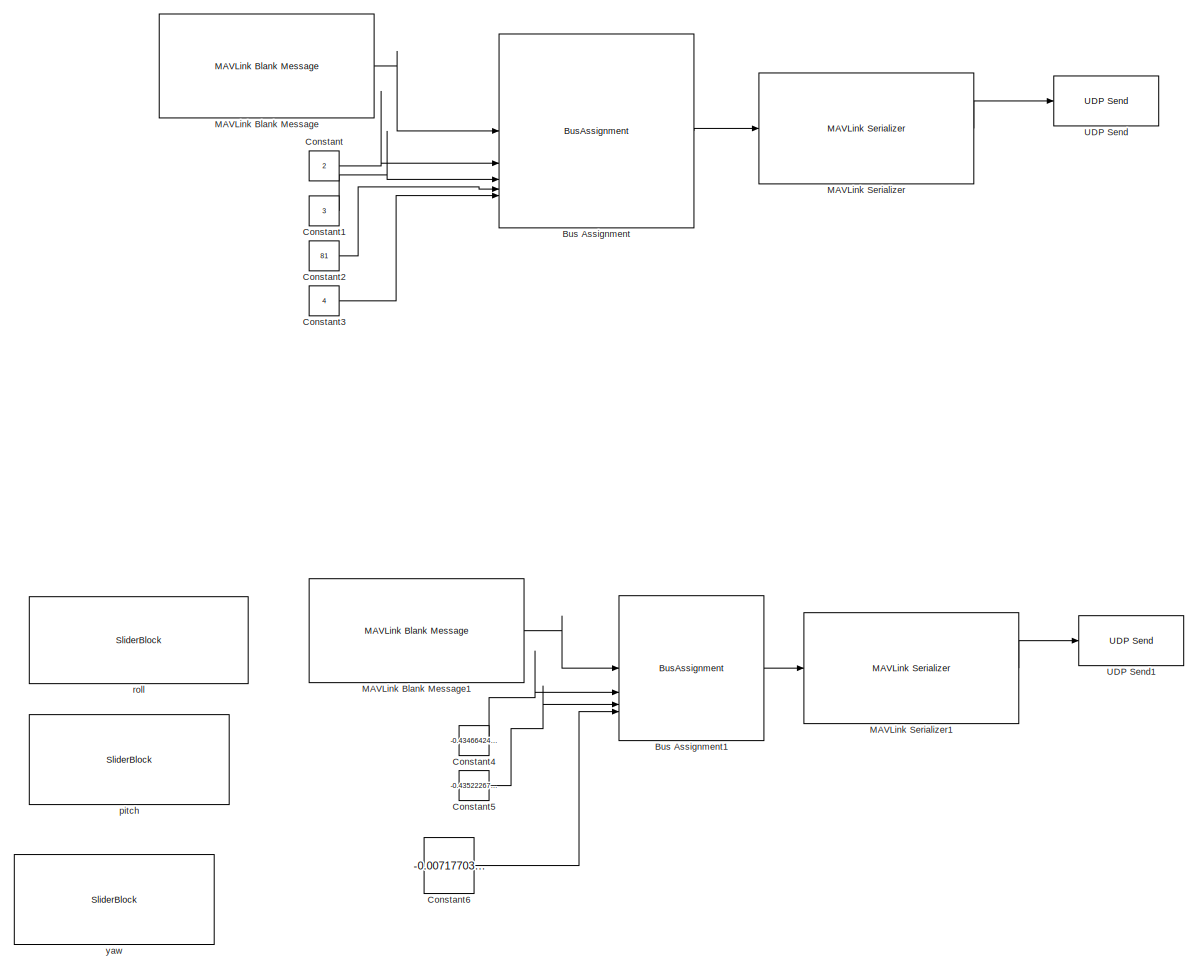
[diagram: root canvas - part 1/1, most of the canvas]
MODEL slx_5f4bbd5aaf19
KIND model
CONFIG AbsTol = auto
CONFIG EnableMultiTasking = off
CONFIG FixedStep = auto
CONFIG MaxStep = auto
CONFIG MinStep = auto
CONFIG RelTol = 1e-3
CONFIG SampleTimeConstraint = Unconstrained
CONFIG SolverName = VariableStepAuto
CONFIG StartTime = 0.0
CONFIG StopTime = inf
BLOCK [BusAssignment] Bus Assignment
  AssignedSignals = Payload.type,Payload.autopilot,Payload.base_mode,Payload.system_status
BLOCK [BusAssignment] Bus Assignment1
  AssignedSignals = Payload.roll,Payload.pitch,Payload.yaw
BLOCK [Constant] Constant
  OutDataTypeStr = uint8
  Value = 2
BLOCK [Constant] Constant1
  OutDataTypeStr = uint8
  Value = 3
BLOCK [Constant] Constant2
  OutDataTypeStr = uint8
  Value = 81
BLOCK [Constant] Constant3
  OutDataTypeStr = uint8
  Value = 4
BLOCK [Constant] Constant4
  OutDataTypeStr = single
  Value = -0.4346642468239564
BLOCK [Constant] Constant5
  OutDataTypeStr = single
  Value = -0.4352226720647773
BLOCK [Constant] Constant6
  OutDataTypeStr = single
  Value = -0.007177033492822948
BLOCK [Reference] MAVLink Blank Message  REF=uavmavlinklib/MAVLink Blank Message
  SourceBlock = uavmavlinklib/MAVLink Blank Message
  SourceType = MAVLink Blank Message
BLOCK [Reference] MAVLink Blank Message1  REF=uavmavlinklib/MAVLink Blank Message
  SourceBlock = uavmavlinklib/MAVLink Blank Message
  SourceType = MAVLink Blank Message
BLOCK [Reference] MAVLink Serializer  REF=uavmavlinklib/MAVLink Serializer
  SourceBlock = uavmavlinklib/MAVLink Serializer
  SourceType = MAVLink Serializer
BLOCK [Reference] MAVLink Serializer1  REF=uavmavlinklib/MAVLink Serializer
  SourceBlock = uavmavlinklib/MAVLink Serializer
  SourceType = MAVLink Serializer
BLOCK [Reference] UDP Send  REF=dspnetwork/UDP Send
  LibrarySourceBlock = dspsnks4/UDP Send
  SourceBlock = dspnetwork/UDP Send
  SourceType = UDP Send
BLOCK [Reference] UDP Send1  REF=dspnetwork/UDP Send
  LibrarySourceBlock = dspsnks4/UDP Send
  SourceBlock = dspnetwork/UDP Send
  SourceType = UDP Send
BLOCK [SliderBlock] pitch
  ScaleMax = 0.5
  ScaleMin = -0.5
BLOCK [SliderBlock] roll
  ScaleMax = 0.5
  ScaleMin = -0.5
BLOCK [SliderBlock] yaw
  ScaleMax = 0.5
  ScaleMin = -0.5
LINE Bus Assignment1:1 -> MAVLink Serializer1:1
LINE Bus Assignment:1 -> MAVLink Serializer:1
LINE Constant1:1 -> Bus Assignment:3
LINE Constant2:1 -> Bus Assignment:4
LINE Constant3:1 -> Bus Assignment:5
LINE Constant4:1 -> Bus Assignment1:2
LINE Constant5:1 -> Bus Assignment1:3
LINE Constant6:1 -> Bus Assignment1:4
LINE Constant:1 -> Bus Assignment:2
LINE MAVLink Blank Message1:1 -> Bus Assignment1:1
LINE MAVLink Blank Message:1 -> Bus Assignment:1
LINE MAVLink Serializer1:1 -> UDP Send1:1
LINE MAVLink Serializer:1 -> UDP Send:1
